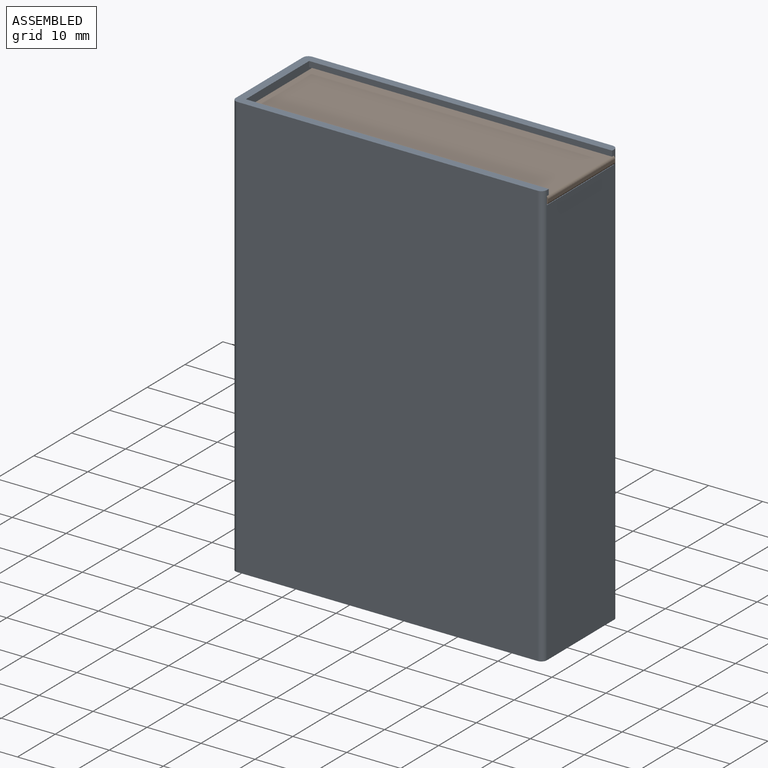
[diagram: assembled view]
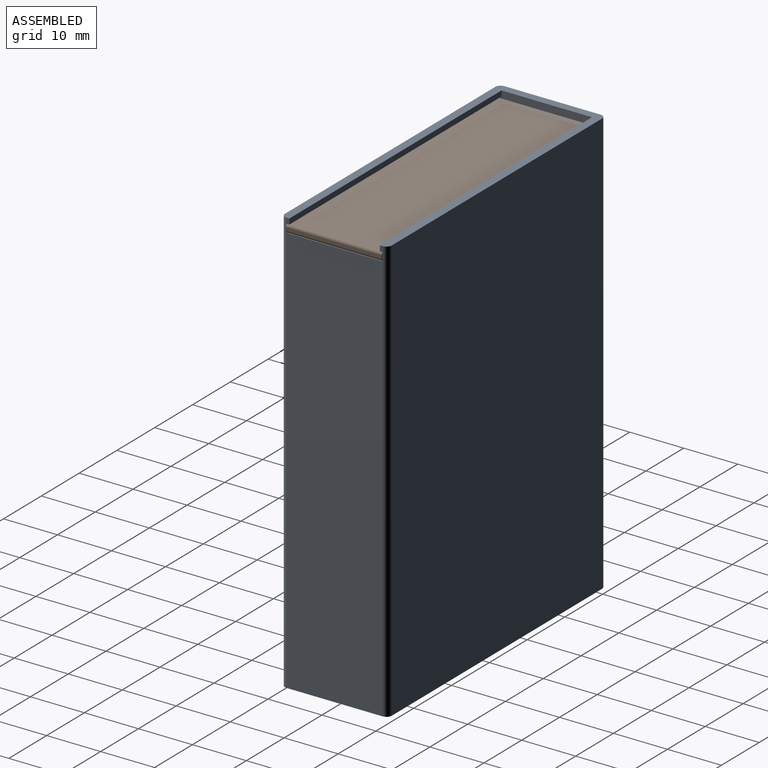
[diagram: assembled view, second angle]
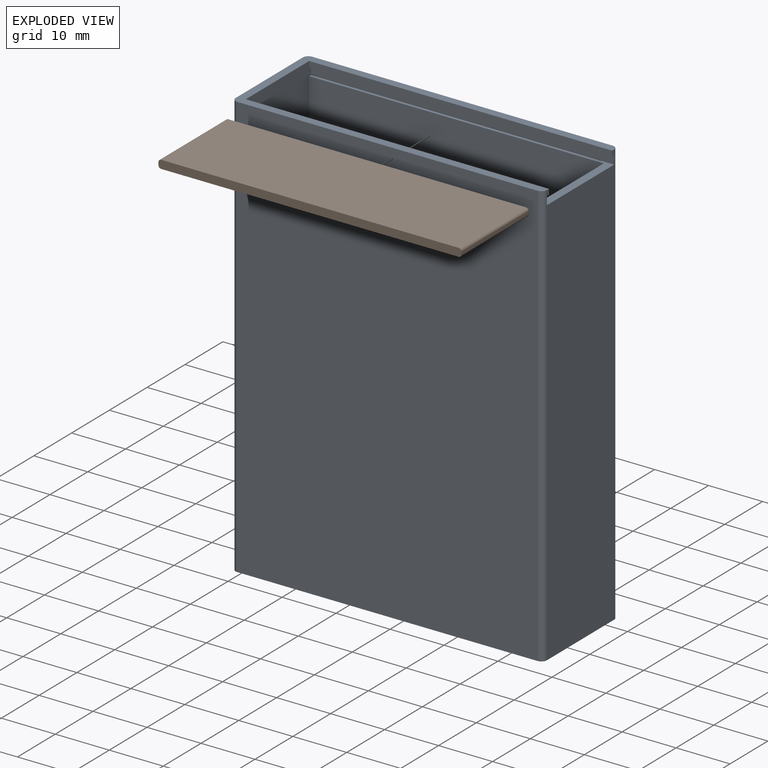
[diagram: exploded view]
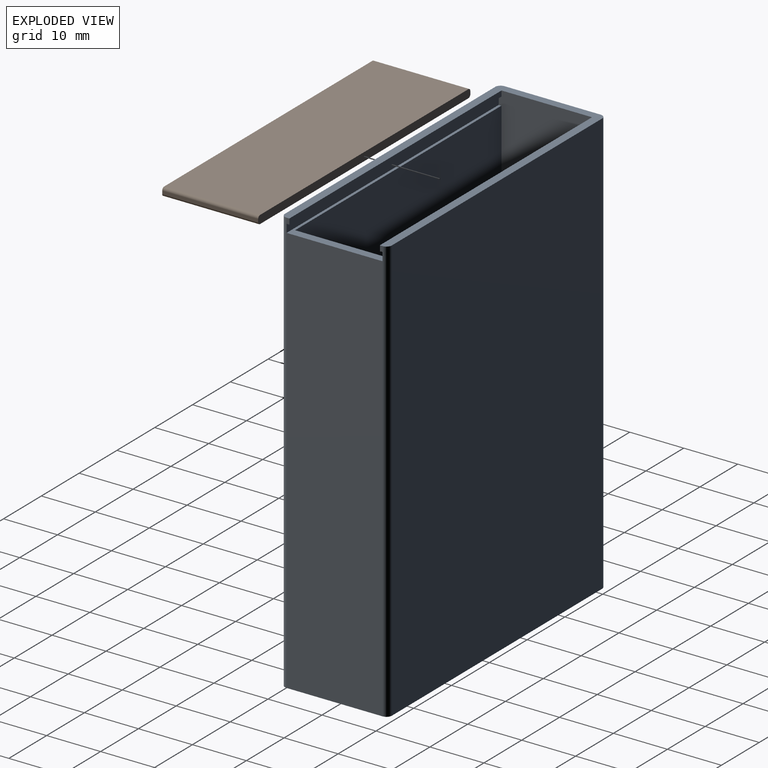
[diagram: exploded view, second angle]
ASSEMBLY  parts=2 mates=2
PART A: 24 faces, bbox 57.7x19.8x78.7 mm
  f0: plane 76.2x17.78mm, normal (1,0,0), area 1354.8mm2, adj f15,f16,f18,f19
  f1: plane 1.02x0.51mm, normal (1,0,0), area 0.5mm2, adj f5,f10,f16,f20
  f2: plane 75.18x16.76mm, normal (-1,0,0), area 1260.4mm2, adj f3,f4,f17,f19
  f3: plane 75.18x54.61mm, normal (0,-1,0), area 4105.8mm2, adj f2,f12,f17,f19
  f4: plane 75.18x54.61mm, normal (0,1,0), area 4105.8mm2, adj f2,f12,f17,f19
  f5: plane 57.66x19.81mm, normal (0,0,1), area 200.4mm2, adj f1,f6,f7,f8,f9,f10,f11,f12
  f6: plane 1.02x0.51mm, normal (1,0,0), area 0.5mm2, adj f5,f11,f15,f22
  f7: plane 78.74x55.63mm, normal (0,1,0), area 4380mm2, adj f5,f13,f16,f18
  f8: plane 78.74x17.78mm, normal (-1,0,0), area 1400mm2, adj f5,f13,f14,f18
  f9: plane 78.74x55.63mm, normal (0,-1,0), area 4380mm2, adj f5,f14,f15,f18
  f10: plane 56.13x1.02mm, normal (0,-1,0), area 57mm2, adj f1,f5,f12,f20
  f11: plane 56.13x1.02mm, normal (0,1,0), area 57mm2, adj f5,f6,f12,f22
  f12: plane 77.72x17.78mm, normal (1,0,0), area 1304.5mm2, adj f3,f4,f5,f10,f11,f17,f19,f20
  f13: cylinder r=1.02mm len=78.74mm, axis (0,0,1), area 125.7mm2, adj f5,f7,f8,f18
  f14: cylinder r=1.02mm len=78.74mm, axis (0,0,-1), area 125.7mm2, adj f5,f8,f9,f18
  f15: cylinder r=1.02mm len=78.74mm, axis (0,0,1), area 125.7mm2, adj f0,f5,f6,f9,f18,f23
  f16: cylinder r=1.02mm len=78.74mm, axis (0,0,-1), area 125.7mm2, adj f0,f1,f5,f7,f18,f21
  f17: plane 54.61x16.76mm, normal (0,0,1), area 915.5mm2, adj f2,f3,f4,f12
  f18: plane 57.66x19.81mm, normal (0,0,-1), area 1141.4mm2, adj f0,f7,f8,f9,f13,f14,f15,f16
  f19: plane 56.13x17.78mm, normal (0,0,1), area 82.6mm2, adj f0,f2,f3,f4,f12,f21,f23
  f20: plane 56.13x0.51mm, normal (0,0,-1), area 28.5mm2, adj f1,f10,f12,f21
  f21: plane 56.13x1.52mm, normal (0,-1,0), area 85.5mm2, adj f12,f16,f19,f20
  f22: plane 56.13x0.51mm, normal (0,0,-1), area 28.5mm2, adj f6,f11,f12,f23
  f23: plane 56.13x1.52mm, normal (0,1,0), area 85.5mm2, adj f12,f15,f19,f22
PART B: 10 faces, bbox 56.1x17.8x1.5 mm
  f0: plane 17.78x0.51mm, normal (1,0,0), area 9mm2, adj f1,f3,f7,f9
  f1: plane 56.13x1.52mm, normal (0,1,0), area 85.3mm2, adj f0,f2,f4,f5,f6,f7,f8,f9
  f2: plane 17.78x0.51mm, normal (-1,0,0), area 9mm2, adj f1,f3,f6,f8
  f3: plane 56.13x1.52mm, normal (0,-1,0), area 85.3mm2, adj f0,f2,f4,f5,f6,f7,f8,f9
  f4: plane 55.12x17.78mm, normal (0,0,-1), area 980mm2, adj f1,f3,f8,f9
  f5: plane 55.12x17.78mm, normal (0,0,1), area 980mm2, adj f1,f3,f6,f7
  f6: cylinder r=0.51mm len=17.78mm, axis (0,-1,0), area 14.2mm2, adj f1,f2,f3,f5
  f7: cylinder r=0.51mm len=17.78mm, axis (0,1,0), area 14.2mm2, adj f0,f1,f3,f5
  f8: cylinder r=0.51mm len=17.78mm, axis (0,1,0), area 14.2mm2, adj f1,f2,f3,f4
  f9: cylinder r=0.51mm len=17.78mm, axis (0,-1,0), area 14.2mm2, adj f0,f1,f3,f4
PLACE A t=(-29.91,20.68,-11.34)mm fixed
PLACE B rot(axis=(0,1,0),180deg) t=(27.96,19.66,63.84)mm
MATE planar B.f3 <-> A.f23  axis (0,-1,0) through (-0.11,1.88,64.6)mm
MATE planar B.f5 <-> A.f19  axis (0,0,-1) through (27.45,10.77,63.84)mm
